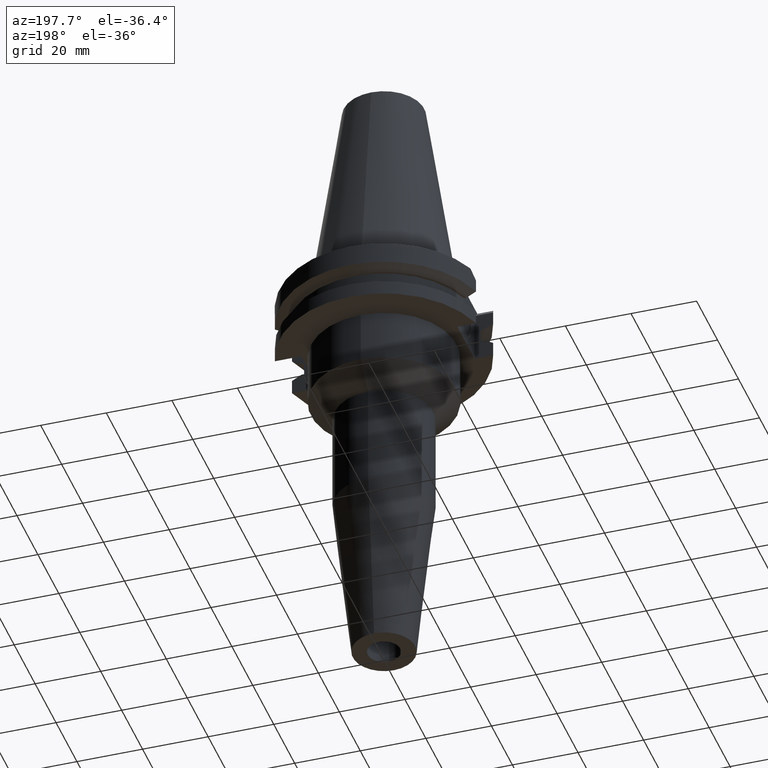
[diagram: clean part render]
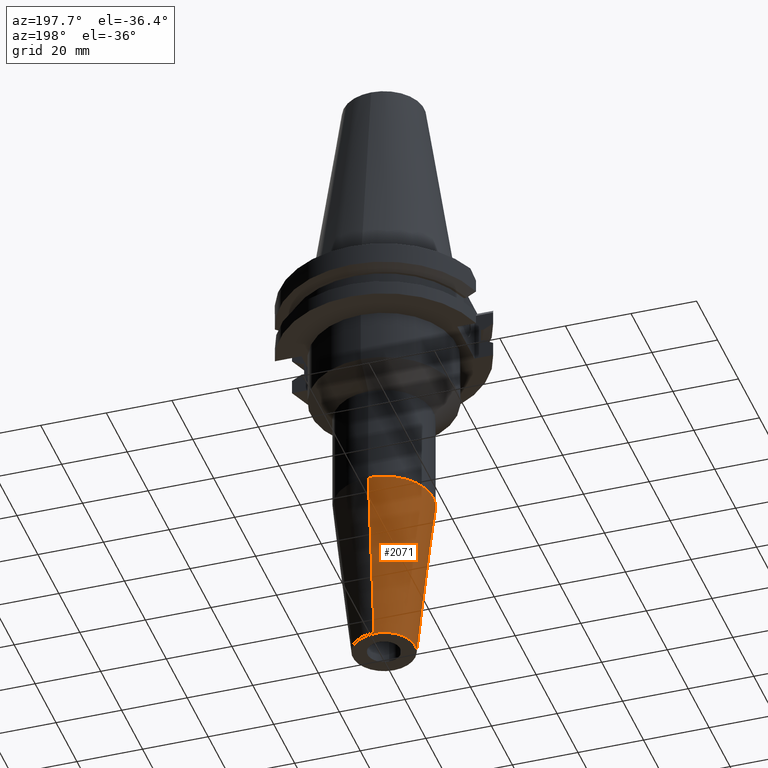
[diagram: same view with one face highlighted and labeled with its STEP entity id]
A machine part, auxiliary view. The second image highlights one B-rep face of the part: STEP entity #2071.
In plain terms, the highlighted conical surface has half-angle 6 deg.
Its self-contained STEP definition (entity closure, byte-faithful):
#922=DIRECTION('',(0.E0,-1.045284632677E-1,-9.945218953683E-1));
#923=VECTOR('',#922,5.261724728428E1);
#924=CARTESIAN_POINT('',(0.E0,1.5E1,-7.267099550178E1));
#925=LINE('',#924,#923);
#937=CARTESIAN_POINT('',(0.E0,0.E0,-7.267099550178E1));
#938=DIRECTION('',(0.E0,0.E0,1.E0));
#939=DIRECTION('',(0.E0,1.E0,0.E0));
#940=AXIS2_PLACEMENT_3D('',#937,#938,#939);
#945=DIRECTION('',(0.E0,1.045284632677E-1,-9.945218953683E-1));
#946=VECTOR('',#945,5.261724728428E1);
#947=CARTESIAN_POINT('',(0.E0,-1.5E1,-7.267099550178E1));
#948=LINE('',#947,#946);
#960=CARTESIAN_POINT('',(0.E0,0.E0,-1.25E2));
#961=DIRECTION('',(0.E0,0.E0,1.E0));
#962=DIRECTION('',(0.E0,1.E0,0.E0));
#963=AXIS2_PLACEMENT_3D('',#960,#961,#962);
#1206=CARTESIAN_POINT('',(0.E0,-9.5E0,-1.25E2));
#1207=CARTESIAN_POINT('',(0.E0,9.5E0,-1.25E2));
#1208=VERTEX_POINT('',#1206);
#1209=VERTEX_POINT('',#1207);
#1210=CARTESIAN_POINT('',(0.E0,1.5E1,-7.267099550178E1));
#1211=VERTEX_POINT('',#1210);
#1212=CARTESIAN_POINT('',(0.E0,-1.5E1,-7.267099550178E1));
#1213=VERTEX_POINT('',#1212);
#2059=CARTESIAN_POINT('',(0.E0,0.E0,-9.883549775089E1));
#2060=DIRECTION('',(0.E0,0.E0,1.E0));
#2061=DIRECTION('',(0.E0,1.E0,0.E0));
#2062=AXIS2_PLACEMENT_3D('',#2059,#2060,#2061);
#2063=CONICAL_SURFACE('',#2062,1.225E1,6.E0);
#2064=ORIENTED_EDGE('',*,*,#2049,.F.);
#2065=ORIENTED_EDGE('',*,*,#2026,.T.);
#2066=ORIENTED_EDGE('',*,*,#2053,.T.);
#2068=ORIENTED_EDGE('',*,*,#2067,.F.);
#2069=EDGE_LOOP('',(#2064,#2065,#2066,#2068));
#2070=FACE_OUTER_BOUND('',#2069,.F.);
#941=CIRCLE('',#940,1.5E1);
#964=CIRCLE('',#963,9.5E0);
#2026=EDGE_CURVE('',#1211,#1213,#941,.T.);
#2049=EDGE_CURVE('',#1211,#1209,#925,.T.);
#2053=EDGE_CURVE('',#1213,#1208,#948,.T.);
#2067=EDGE_CURVE('',#1209,#1208,#964,.T.);
#2071=ADVANCED_FACE('',(#2070),#2063,.T.);